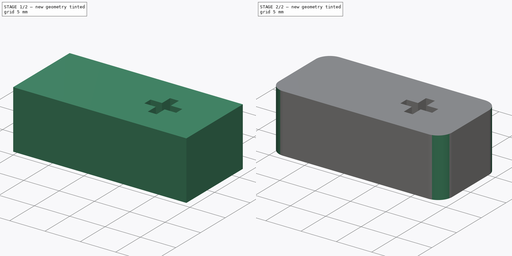
[diagram: build sequence overview — one tinted view per stage of 2, left to right]
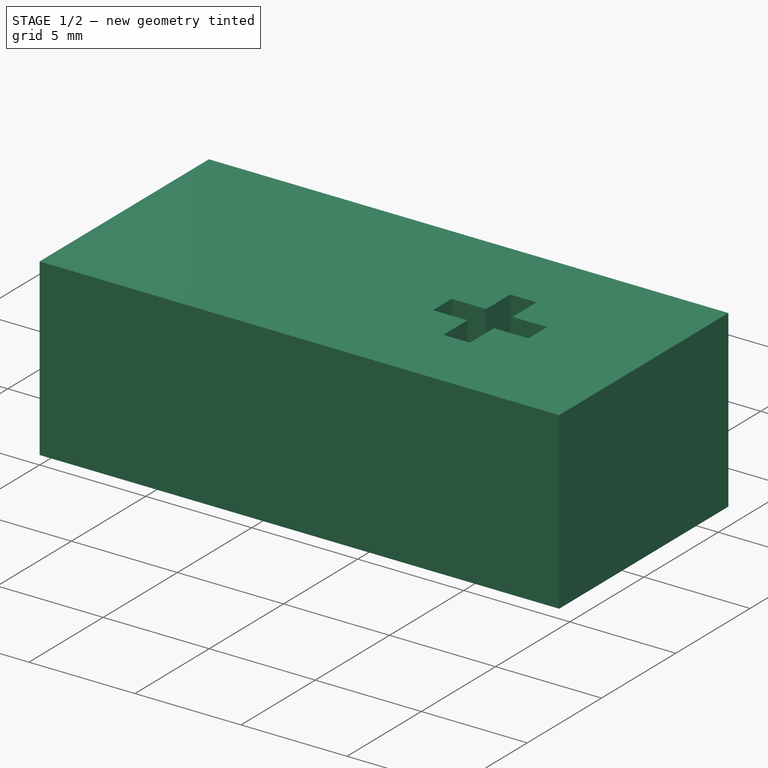
[diagram: stage 1 of 2 — iso view after this stage's code; geometry added in this stage tinted green]
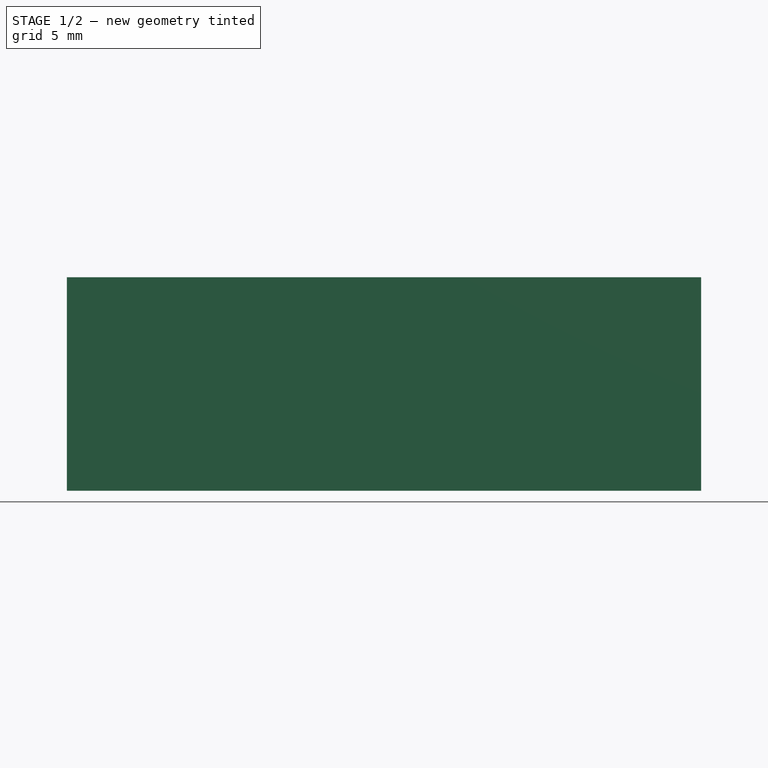
[diagram: stage 1 of 2 — front view after this stage's code; geometry added in this stage tinted green]
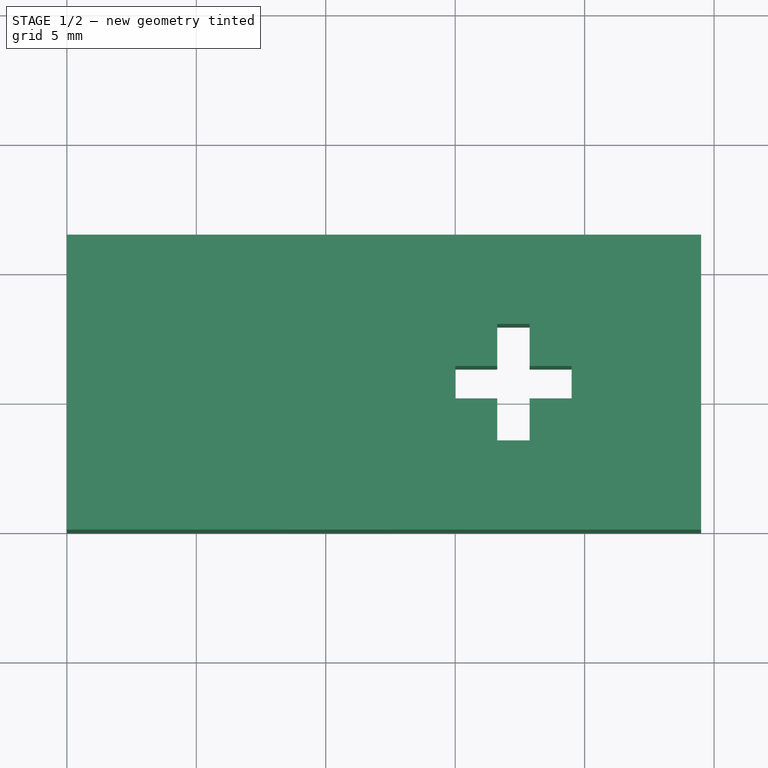
[diagram: stage 1 of 2 — top view after this stage's code; geometry added in this stage tinted green]
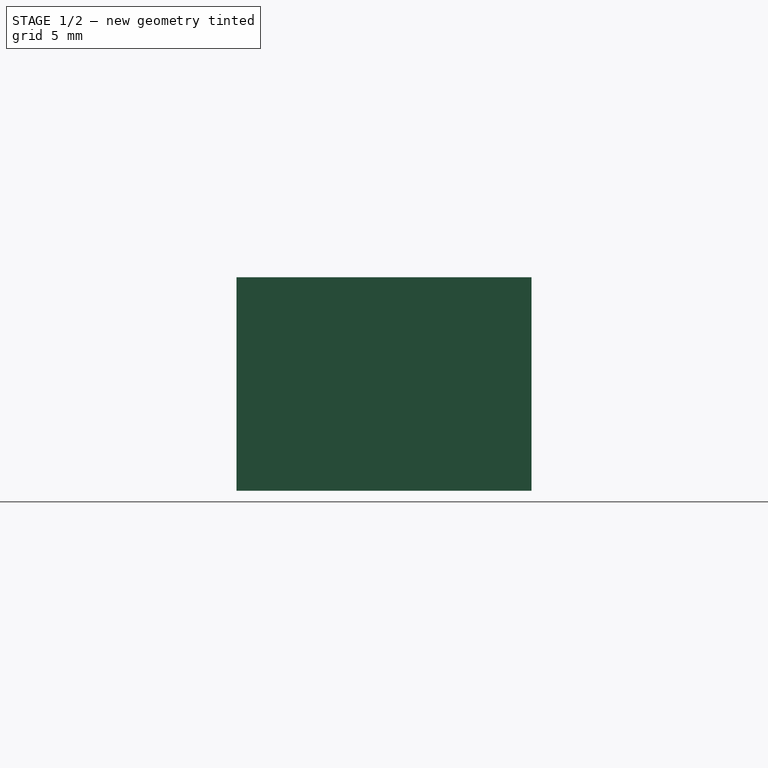
[diagram: stage 1 of 2 — right view after this stage's code; geometry added in this stage tinted green]
FCSTD DOCUMENT  (FreeCAD 1.0R39109 (Git))
Label: StackpoleXLSpaceStabilizerAdapter
License: All rights reserved
LicenseURL: http://en.wikipedia.org/wiki/All_rights_reserved
objects: Sketcher::SketchObject×1, PartDesign::Pad×1, PartDesign::Fillet×1, PartDesign::Body×1
note: 9 computed .brp shape members not serialized (recipe doc carries the construction recipe); baked Part::Feature solids carry a one-line shape summary decoded from their .brp

FEATURE [Sketcher::SketchObject] Sketch
  ArcFitTolerance = 0
  AttachmentSupport = -> [XY_Plane]
  FullyConstrained = true
  MakeInternals = false
  MapMode = 5
  sketch-geometry (20):
    g0: LineSegment StartX=0 StartY=0 StartZ=0 EndX=24.5 EndY=0 EndZ=0
    g1: LineSegment StartX=24.5 StartY=0 StartZ=0 EndX=24.5 EndY=11.4 EndZ=0
    g2: LineSegment StartX=24.5 StartY=11.4 StartZ=0 EndX=0 EndY=11.4 EndZ=0
    g3: LineSegment StartX=0 StartY=11.4 StartZ=0 EndX=0 EndY=0 EndZ=0
    g4: LineSegment StartX=16.625 StartY=7.95 StartZ=0 EndX=17.875 EndY=7.95 EndZ=0
    g5: LineSegment StartX=17.875 StartY=7.95 StartZ=0 EndX=17.875 EndY=6.325 EndZ=0
    g6: LineSegment StartX=17.875 StartY=6.325 StartZ=0 EndX=19.5 EndY=6.325 EndZ=0
    g7: LineSegment StartX=19.5 StartY=6.325 StartZ=0 EndX=19.5 EndY=5.075 EndZ=0
    g8: LineSegment StartX=19.5 StartY=5.075 StartZ=0 EndX=17.875 EndY=5.075 EndZ=0
    g9: LineSegment StartX=17.875 StartY=5.075 StartZ=0 EndX=17.875 EndY=3.45 EndZ=0
    g10: LineSegment StartX=17.875 StartY=3.45 StartZ=0 EndX=16.625 EndY=3.45 EndZ=0
    g11: LineSegment StartX=16.625 StartY=3.45 StartZ=0 EndX=16.625 EndY=5.075 EndZ=0
    g12: LineSegment StartX=16.625 StartY=5.075 StartZ=0 EndX=15 EndY=5.075 EndZ=0
    g13: LineSegment StartX=15 StartY=5.075 StartZ=0 EndX=15 EndY=6.325 EndZ=0
    g14: LineSegment StartX=15 StartY=6.325 StartZ=0 EndX=16.625 EndY=6.325 EndZ=0
    g15: LineSegment StartX=16.625 StartY=6.325 StartZ=0 EndX=16.625 EndY=7.95 EndZ=0
    g16: GeomPoint [constr] X=17.25 Y=5.7 Z=0
    g17: GeomPoint [constr] X=24.5 Y=5.7 Z=0
    g18: GeomPoint [constr] X=0 Y=5.7 Z=0
    g19: LineSegment [constr] StartX=0 StartY=5.7 StartZ=0 EndX=24.5 EndY=5.7 EndZ=0
  constraints (52):
    c: Coincident(g0,g1)
    c: Coincident(g1,g2)
    c: Coincident(g2,g3)
    c: Coincident(g3,g0)
    c: Horizontal(g0)
    c: Horizontal(g2)
    c: Vertical(g1)
    c: Vertical(g3)
    c: Coincident(g0,g-1)
    c: DistanceY(g1,g1) = 11.4
    c: DistanceX(g2,g2) = 24.5
    c: Horizontal(g4)
    c: Coincident(g4,g5)
    c: Vertical(g5)
    c: Coincident(g5,g6)
    c: Horizontal(g6)
    c: Coincident(g6,g7)
    c: Vertical(g7)
    c: Coincident(g7,g8)
    c: Horizontal(g8)
    c: Coincident(g8,g9)
    c: Vertical(g9)
    c: Coincident(g9,g10)
    c: Horizontal(g10)
    c: Coincident(g10,g11)
    c: Vertical(g11)
    c: Coincident(g11,g12)
    c: Horizontal(g12)
    c: Coincident(g12,g13)
    c: Vertical(g13)
    c: Coincident(g13,g14)
    c: Horizontal(g14)
    c: Coincident(g14,g15)
    c: Coincident(g15,g4)
    c: Vertical(g15)
    c: Vertical(g14,g11)
    c: Vertical(g5,g8)
    c: Horizontal(g14,g5)
    c: Horizontal(g11,g8)
    c: Equal(g4,g7)
    c: Equal(g14,g15)
    c: Equal(g14,g11)
    c: Equal(g14,g6)
    c: DistanceX(g4,g4) = 1.25
    c: DistanceX(g12,g7) = 4.5
    c: Symmetric(g11,g5,g16)
    c: Coincident(g19,g18)
    c: Coincident(g19,g17)
    c: Symmetric(g2,g0,g18)
    c: Symmetric(g1,g0,g17)
    c: PointOnObject(g16,g19)
    c: DistanceX(g16,g1) = 7.25
FEATURE [PartDesign::Pad] Pad
  Direction = (0,0,1)
  Length = 8.25
  Length2 = 10
  Profile = -> Sketch
  ReferenceAxis = -> Sketch [N_Axis]
  Suppressed = false
  Type = 0
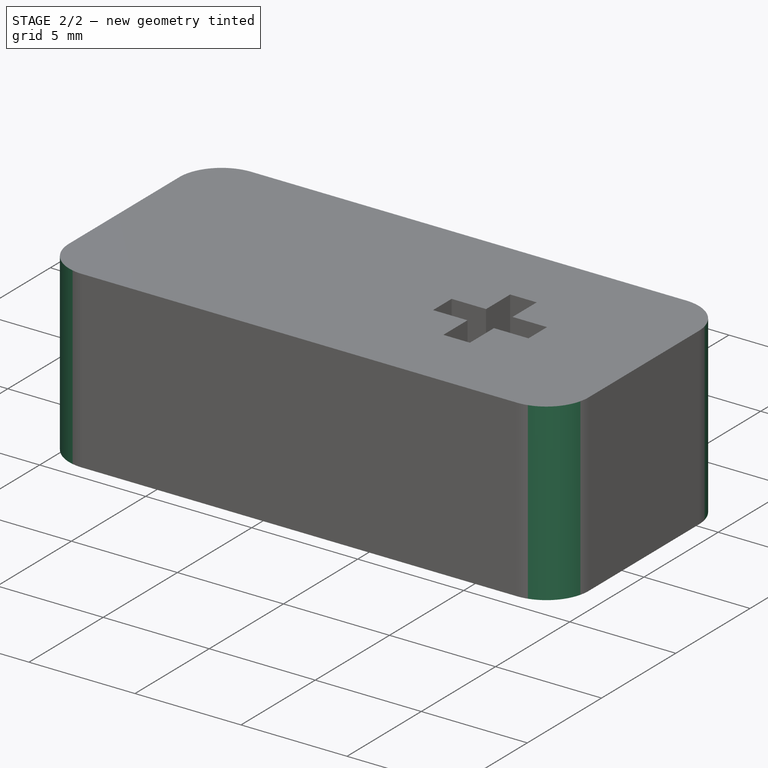
[diagram: stage 2 of 2 — iso view after this stage's code; geometry added in this stage tinted green]
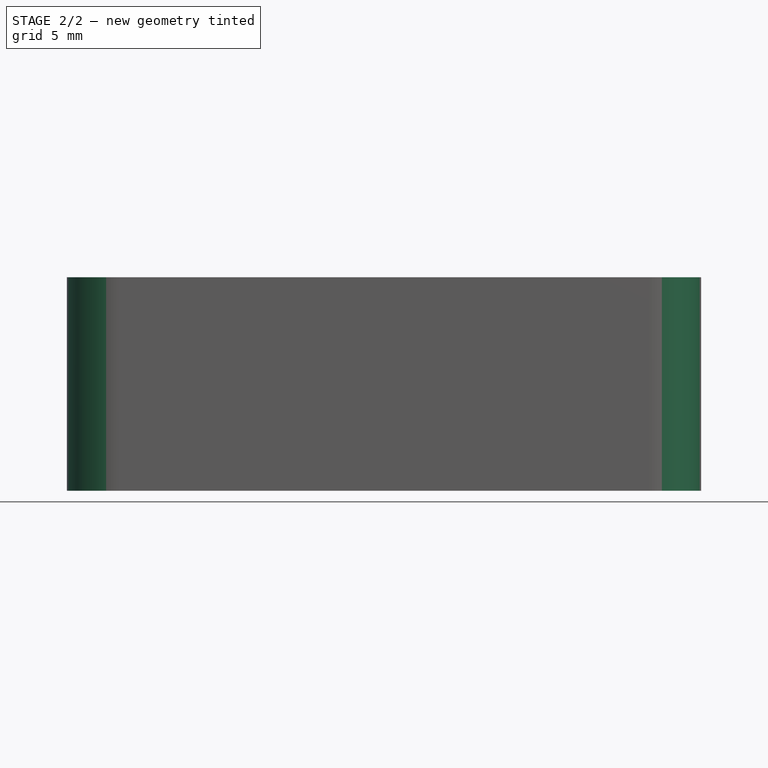
[diagram: stage 2 of 2 — front view after this stage's code; geometry added in this stage tinted green]
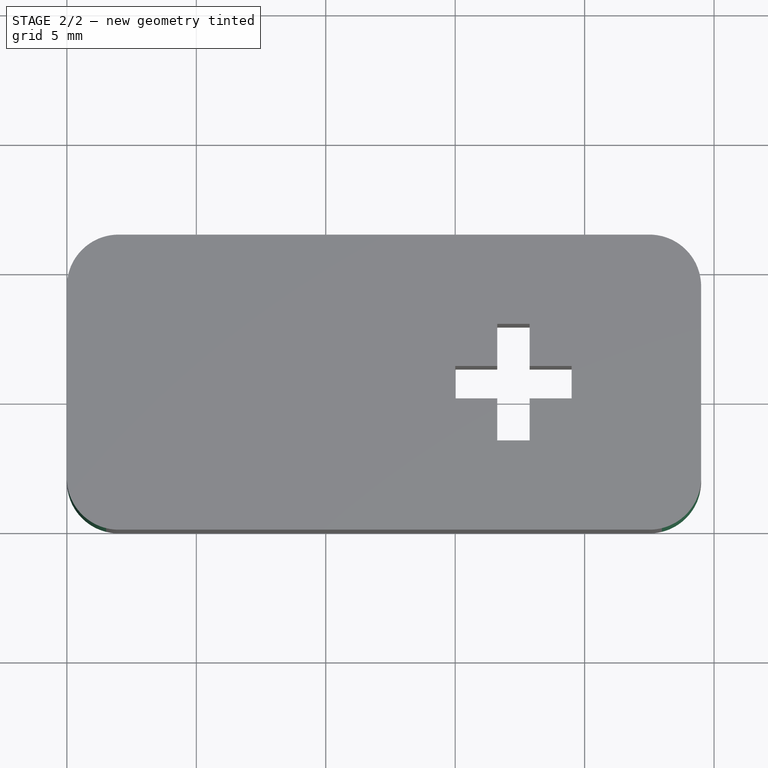
[diagram: stage 2 of 2 — top view after this stage's code; geometry added in this stage tinted green]
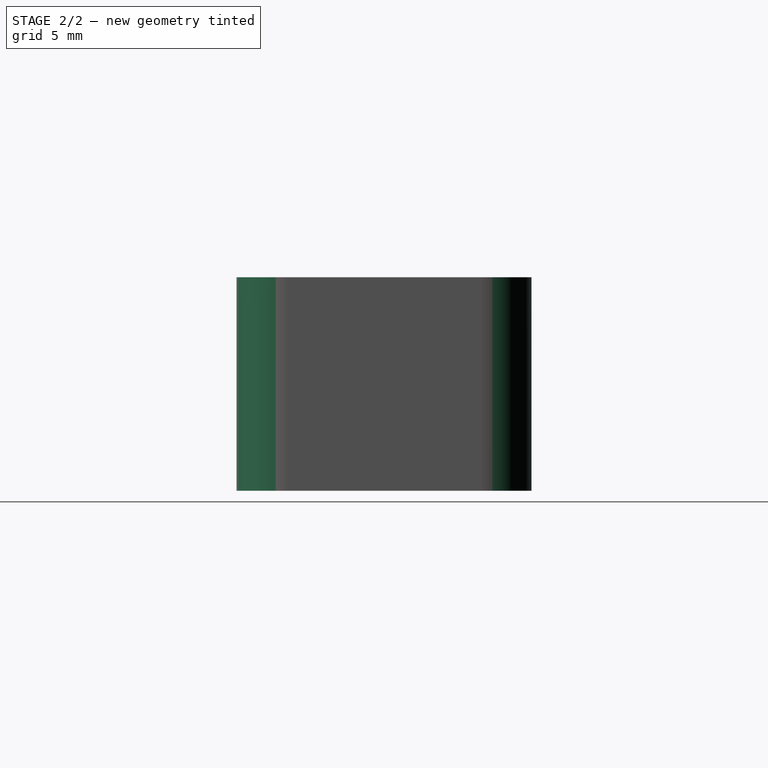
[diagram: stage 2 of 2 — right view after this stage's code; geometry added in this stage tinted green]
FEATURE [PartDesign::Fillet] Fillet
  Base = -> Pad [Edge2,Edge1,Edge5,Edge8]
  BaseFeature = -> Pad
  Radius = 2
  SupportTransform = false
  Suppressed = false
  UseAllEdges = false
FEATURE [PartDesign::Body] Body  label="StackpoleXLSpaceStabilizerAdapterBody"
  AllowCompound = false
  Group = -> [Sketch,Pad,Fillet]
  Origin = -> Origin
  Tip = -> Fillet
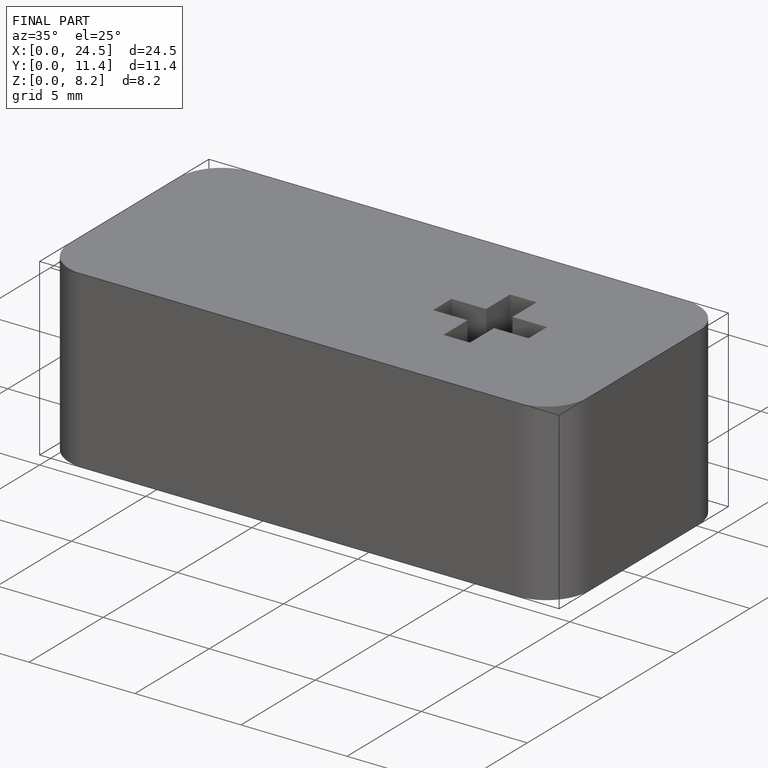
[diagram: finished part — iso view with bounding-box wireframe]
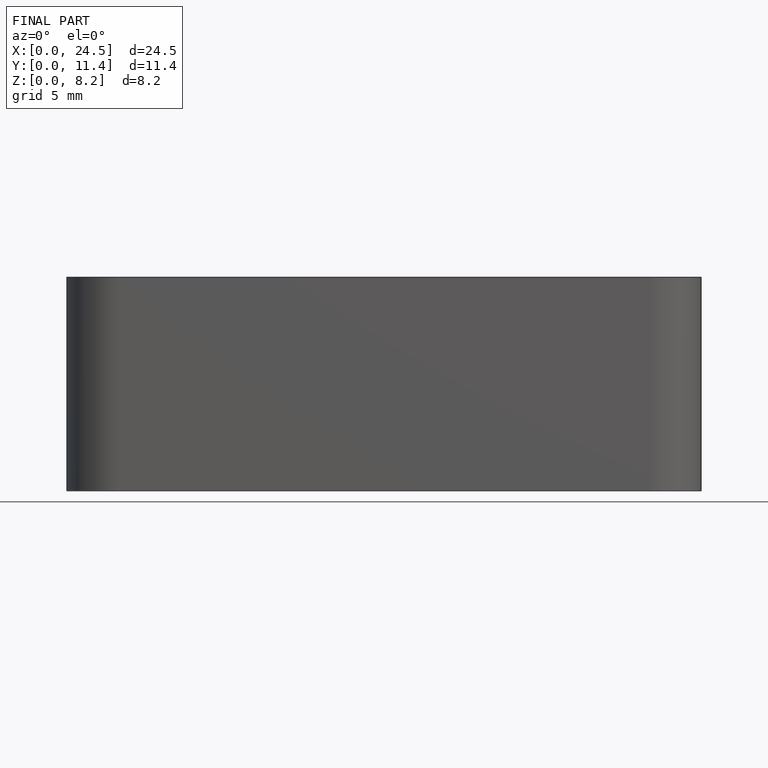
[diagram: finished part — front view with bounding-box wireframe]
